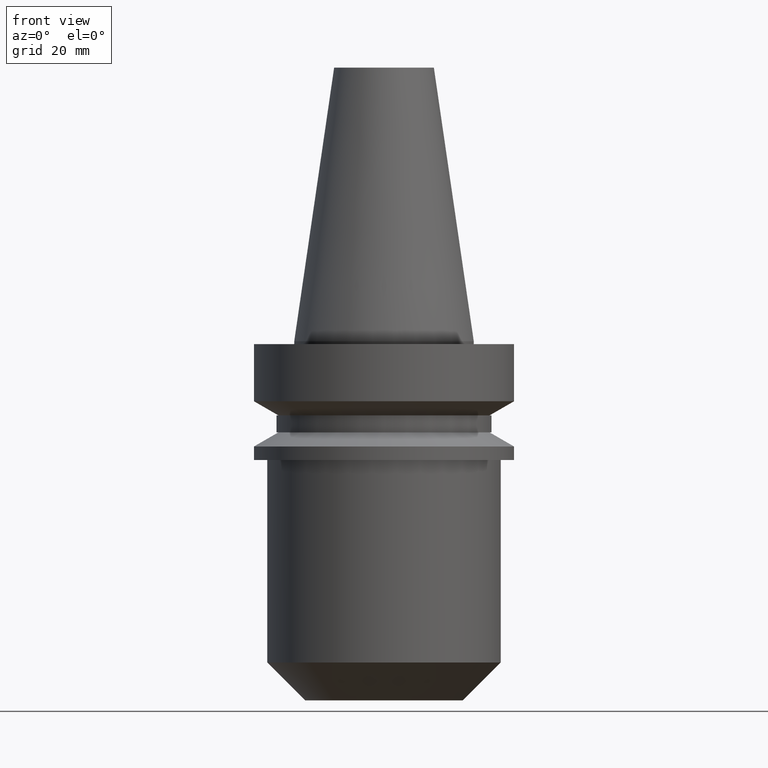
[diagram: clean part render]
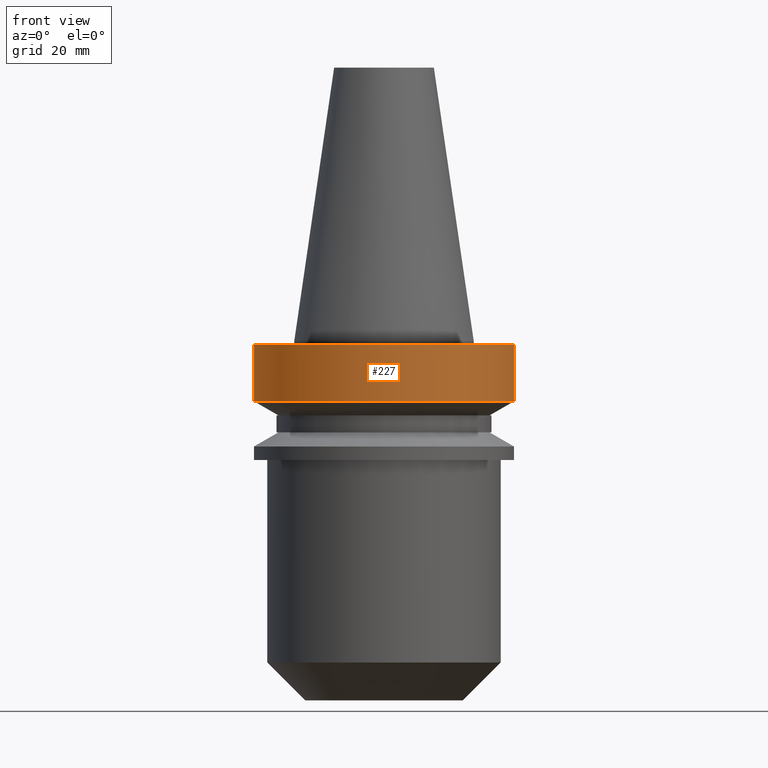
[diagram: same view with one face highlighted and labeled with its STEP entity id]
A machine part, front view. The second image highlights one B-rep face of the part: STEP entity #227.
In plain terms, the highlighted cylindrical surface (partial cylindrical patch) has radius 23 mm, axis along (-0, -0, 1).
Its self-contained STEP definition (entity closure, byte-faithful):
#1 = CARTESIAN_POINT ( 'NONE',  ( 23.00000000000000355, 0.000000000000000000, 48.39999999999998437 ) ) ;
#6 = DIRECTION ( 'NONE',  ( 1.000000000000000000, 0.000000000000000000, 0.000000000000000000 ) ) ;
#52 = CARTESIAN_POINT ( 'NONE',  ( 23.00000000000000000, 0.000000000000000000, -0.5000000000000004441 ) ) ;
#68 = EDGE_CURVE ( 'NONE', #729, #133, #661, .T. ) ;
#81 = CARTESIAN_POINT ( 'NONE',  ( 0.000000000000000000, 0.000000000000000000, 48.39999999999998437 ) ) ;
#101 = AXIS2_PLACEMENT_3D ( 'NONE', #81, #372, #678 ) ;
#133 = VERTEX_POINT ( 'NONE', #545 ) ;
#150 = EDGE_CURVE ( 'NONE', #133, #568, #355, .T. ) ;
#196 = AXIS2_PLACEMENT_3D ( 'NONE', #643, #531, #284 ) ;
#227 = ADVANCED_FACE ( 'NONE', ( #441 ), #383, .T. ) ;
#241 = DIRECTION ( 'NONE',  ( -0.000000000000000000, -0.000000000000000000, 1.000000000000000000 ) ) ;
#284 = DIRECTION ( 'NONE',  ( 1.000000000000000000, 0.000000000000000000, 0.000000000000000000 ) ) ;
#286 = CIRCLE ( 'NONE', #196, 23.00000000000000000 ) ;
#331 = ORIENTED_EDGE ( 'NONE', *, *, #150, .T. ) ;
#338 = VECTOR ( 'NONE', #413, 1000.000000000000000 ) ;
#347 = AXIS2_PLACEMENT_3D ( 'NONE', #691, #637, #6 ) ;
#355 = LINE ( 'NONE', #1, #676 ) ;
#372 = DIRECTION ( 'NONE',  ( -0.000000000000000000, -0.000000000000000000, 1.000000000000000000 ) ) ;
#383 = CYLINDRICAL_SURFACE ( 'NONE', #101, 23.00000000000000355 ) ;
#407 = EDGE_CURVE ( 'NONE', #609, #568, #286, .T. ) ;
#413 = DIRECTION ( 'NONE',  ( -0.000000000000000000, -0.000000000000000000, 1.000000000000000000 ) ) ;
#441 = FACE_OUTER_BOUND ( 'NONE', #634, .T. ) ;
#531 = DIRECTION ( 'NONE',  ( -0.000000000000000000, -0.000000000000000000, 1.000000000000000000 ) ) ;
#545 = CARTESIAN_POINT ( 'NONE',  ( 23.00000000000000711, 0.000000000000000000, -10.60014200631680126 ) ) ;
#561 = CARTESIAN_POINT ( 'NONE',  ( -23.00000000000000711, 2.816687638038913141E-15, -10.60014200631680126 ) ) ;
#568 = VERTEX_POINT ( 'NONE', #52 ) ;
#573 = EDGE_CURVE ( 'NONE', #729, #609, #706, .T. ) ;
#585 = ORIENTED_EDGE ( 'NONE', *, *, #68, .T. ) ;
#609 = VERTEX_POINT ( 'NONE', #719 ) ;
#634 = EDGE_LOOP ( 'NONE', ( #675, #585, #331, #688 ) ) ;
#637 = DIRECTION ( 'NONE',  ( -0.000000000000000000, -0.000000000000000000, 1.000000000000000000 ) ) ;
#643 = CARTESIAN_POINT ( 'NONE',  ( 0.000000000000000000, 0.000000000000000000, -0.5000000000000004441 ) ) ;
#661 = CIRCLE ( 'NONE', #347, 23.00000000000000711 ) ;
#675 = ORIENTED_EDGE ( 'NONE', *, *, #573, .F. ) ;
#676 = VECTOR ( 'NONE', #241, 1000.000000000000000 ) ;
#678 = DIRECTION ( 'NONE',  ( 1.000000000000000000, 0.000000000000000000, 0.000000000000000000 ) ) ;
#688 = ORIENTED_EDGE ( 'NONE', *, *, #407, .F. ) ;
#691 = CARTESIAN_POINT ( 'NONE',  ( 0.000000000000000000, 0.000000000000000000, -10.60014200631680126 ) ) ;
#706 = LINE ( 'NONE', #770, #338 ) ;
#719 = CARTESIAN_POINT ( 'NONE',  ( -23.00000000000000000, 2.816687638038912746E-15, -0.5000000000000004441 ) ) ;
#729 = VERTEX_POINT ( 'NONE', #561 ) ;
#770 = CARTESIAN_POINT ( 'NONE',  ( -23.00000000000000355, 2.816687638038912746E-15, 48.39999999999998437 ) ) ;